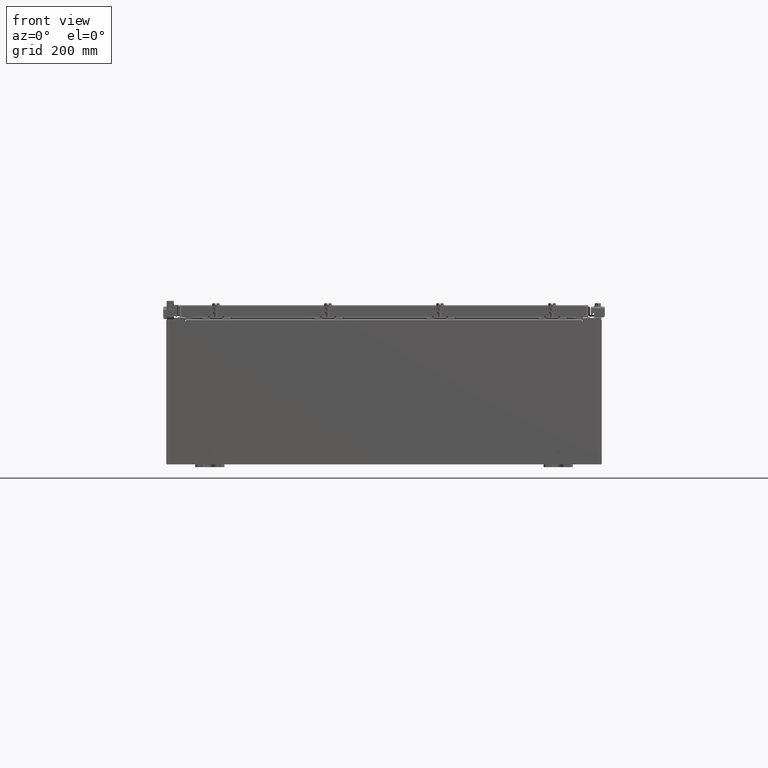
[diagram: clean part render]
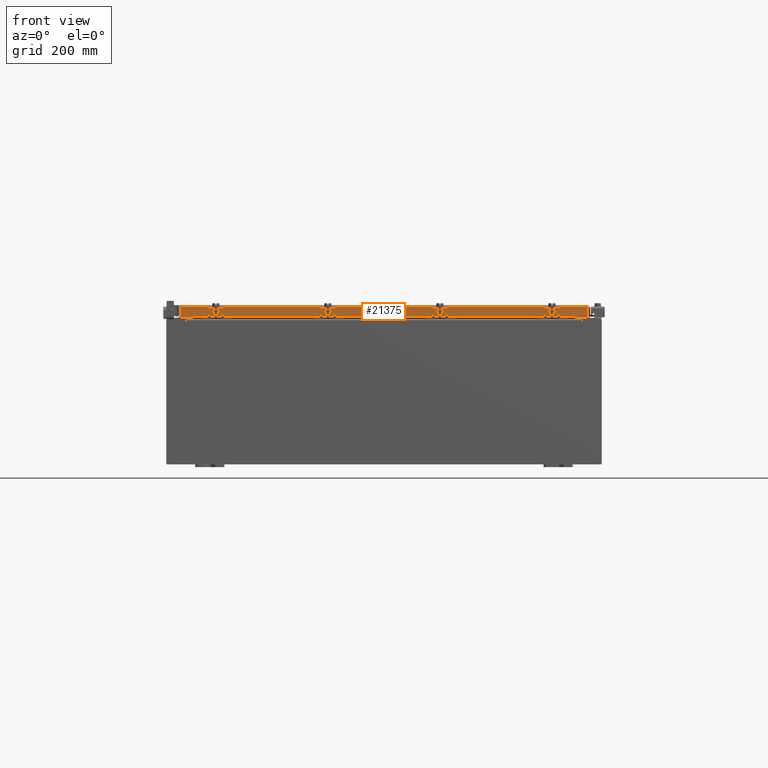
[diagram: same view with one face highlighted and labeled with its STEP entity id]
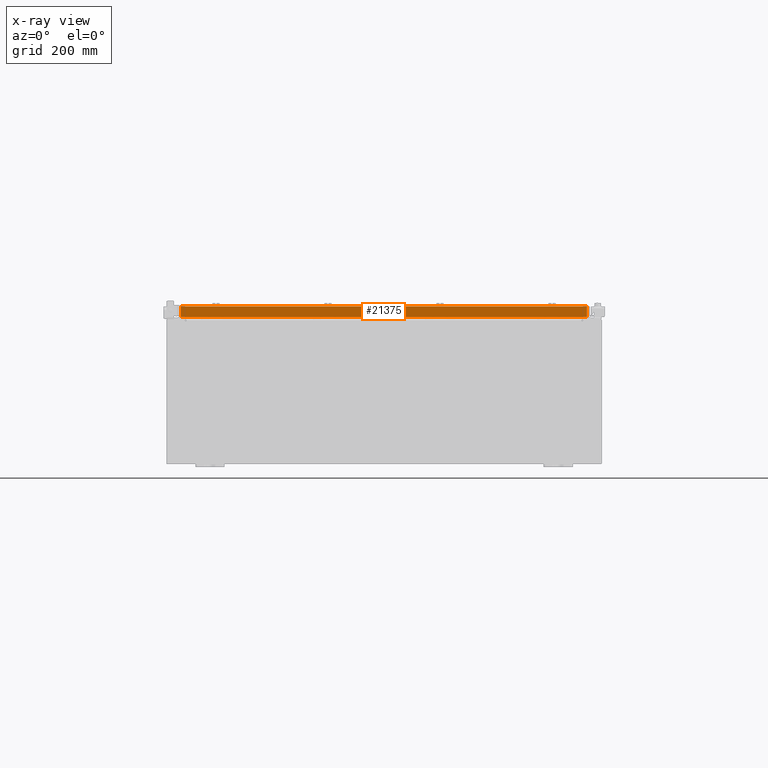
[diagram: x-ray of the same camera — body ghosted, the highlighted face saturated]
A machine part, front view. The second image highlights one B-rep face of the part: STEP entity #21375.
The next image is the same camera in x-ray: the body ghosted, the highlighted face saturated — about 0% of this face is hidden behind the body in this view.
In plain terms, the highlighted planar face has unit normal (-0, 1, -0).
Its self-contained STEP definition (entity closure, byte-faithful):
#294 = VERTEX_POINT ( 'NONE', #14999 ) ;
#321 = LINE ( 'NONE', #20189, #4412 ) ;
#460 = AXIS2_PLACEMENT_3D ( 'NONE', #17125, #18863, #8469 ) ;
#563 = DIRECTION ( 'NONE',  ( -1.000000000000000000, 4.379057701015054300E-047, 1.212817869044015600E-016 ) ) ;
#695 = CARTESIAN_POINT ( 'NONE',  ( -13.98915786437626900, -17.09400000000000500, -0.8499999999999963100 ) ) ;
#1620 = EDGE_CURVE ( 'NONE', #294, #2618, #18452, .T. ) ;
#1947 = ORIENTED_EDGE ( 'NONE', *, *, #1620, .F. ) ;
#2618 = VERTEX_POINT ( 'NONE', #17798 ) ;
#3100 = VECTOR ( 'NONE', #4703, 39.37007874015748100 ) ;
#3838 = CARTESIAN_POINT ( 'NONE',  ( 14.07799999999999800, -17.09400000000000100, -0.08770000000000007000 ) ) ;
#4055 = CARTESIAN_POINT ( 'NONE',  ( -13.98915786437626900, -17.09400000000000100, -0.08770000000000007000 ) ) ;
#4412 = VECTOR ( 'NONE', #21122, 39.37007874015748100 ) ;
#4619 = VECTOR ( 'NONE', #563, 39.37007874015748100 ) ;
#4639 = CARTESIAN_POINT ( 'NONE',  ( 13.23915786437626900, -17.09399999999999800, -0.8500000000000006400 ) ) ;
#4703 = DIRECTION ( 'NONE',  ( -1.000000000000000000, 0.0000000000000000000, 0.0000000000000000000 ) ) ;
#4714 = VECTOR ( 'NONE', #6692, 39.37007874015748100 ) ;
#5234 = EDGE_CURVE ( 'NONE', #2618, #6245, #21551, .T. ) ;
#6058 = VERTEX_POINT ( 'NONE', #695 ) ;
#6245 = VERTEX_POINT ( 'NONE', #15044 ) ;
#6364 = EDGE_CURVE ( 'NONE', #9392, #294, #321, .T. ) ;
#6692 = DIRECTION ( 'NONE',  ( -1.000000000000000000, 4.379057701015054300E-047, 1.212817869044015600E-016 ) ) ;
#7027 = VECTOR ( 'NONE', #15844, 39.37007874015748100 ) ;
#8469 = DIRECTION ( 'NONE',  ( 0.0000000000000000000, 2.818880942772360100E-015, 1.000000000000000000 ) ) ;
#8968 = CARTESIAN_POINT ( 'NONE',  ( 14.07799999999999900, -17.09400000000000500, -0.8499999999999996400 ) ) ;
#9338 = LINE ( 'NONE', #10181, #4714 ) ;
#9392 = VERTEX_POINT ( 'NONE', #12726 ) ;
#10181 = CARTESIAN_POINT ( 'NONE',  ( 14.07799999999999900, -17.09400000000000500, -0.8499999999999996400 ) ) ;
#10496 = FACE_OUTER_BOUND ( 'NONE', #12238, .T. ) ;
#11723 = ORIENTED_EDGE ( 'NONE', *, *, #17027, .F. ) ;
#11855 = PLANE ( 'NONE',  #460 ) ;
#12238 = EDGE_LOOP ( 'NONE', ( #21201, #14580, #11723, #17633, #1947, #21107 ) ) ;
#12726 = CARTESIAN_POINT ( 'NONE',  ( 13.98915786437626500, -17.09400000000000100, -0.08770000000000007000 ) ) ;
#14094 = EDGE_CURVE ( 'NONE', #14157, #9392, #16814, .T. ) ;
#14105 = CARTESIAN_POINT ( 'NONE',  ( -13.98915786437626900, -17.09400000000000100, 4.844676449176230700E-014 ) ) ;
#14157 = VERTEX_POINT ( 'NONE', #4055 ) ;
#14580 = ORIENTED_EDGE ( 'NONE', *, *, #20294, .T. ) ;
#14999 = CARTESIAN_POINT ( 'NONE',  ( 13.98915786437626700, -17.09400000000000500, -0.8499999999999996400 ) ) ;
#15044 = CARTESIAN_POINT ( 'NONE',  ( -13.23915786437626900, -17.09399999999999800, -0.8500000000000006400 ) ) ;
#15844 = DIRECTION ( 'NONE',  ( 0.0000000000000000000, -2.818880942772360100E-015, -1.000000000000000000 ) ) ;
#16250 = LINE ( 'NONE', #14105, #7027 ) ;
#16814 = LINE ( 'NONE', #3838, #20848 ) ;
#17027 = EDGE_CURVE ( 'NONE', #6245, #6058, #9338, .T. ) ;
#17125 = CARTESIAN_POINT ( 'NONE',  ( 5.844078221047488800E-030, -17.09400000000000100, 4.844676449176230700E-014 ) ) ;
#17633 = ORIENTED_EDGE ( 'NONE', *, *, #5234, .F. ) ;
#17798 = CARTESIAN_POINT ( 'NONE',  ( 13.23915786437626900, -17.09399999999999800, -0.8500000000000006400 ) ) ;
#18452 = LINE ( 'NONE', #8968, #4619 ) ;
#18863 = DIRECTION ( 'NONE',  ( -3.418789178101958800E-031, 1.000000000000000000, -2.818880942772360100E-015 ) ) ;
#20189 = CARTESIAN_POINT ( 'NONE',  ( 13.98915786437626700, -17.09400000000000100, -0.07469999999999978000 ) ) ;
#20294 = EDGE_CURVE ( 'NONE', #14157, #6058, #16250, .T. ) ;
#20848 = VECTOR ( 'NONE', #21203, 39.37007874015748100 ) ;
#21107 = ORIENTED_EDGE ( 'NONE', *, *, #6364, .F. ) ;
#21122 = DIRECTION ( 'NONE',  ( -0.0000000000000000000, -2.818880942772360100E-015, -1.000000000000000000 ) ) ;
#21201 = ORIENTED_EDGE ( 'NONE', *, *, #14094, .F. ) ;
#21203 = DIRECTION ( 'NONE',  ( 1.000000000000000000, 3.418789178101959700E-031, -9.318824769679573900E-046 ) ) ;
#21375 = ADVANCED_FACE ( 'NONE', ( #10496 ), #11855, .F. ) ;
#21551 = LINE ( 'NONE', #4639, #3100 ) ;